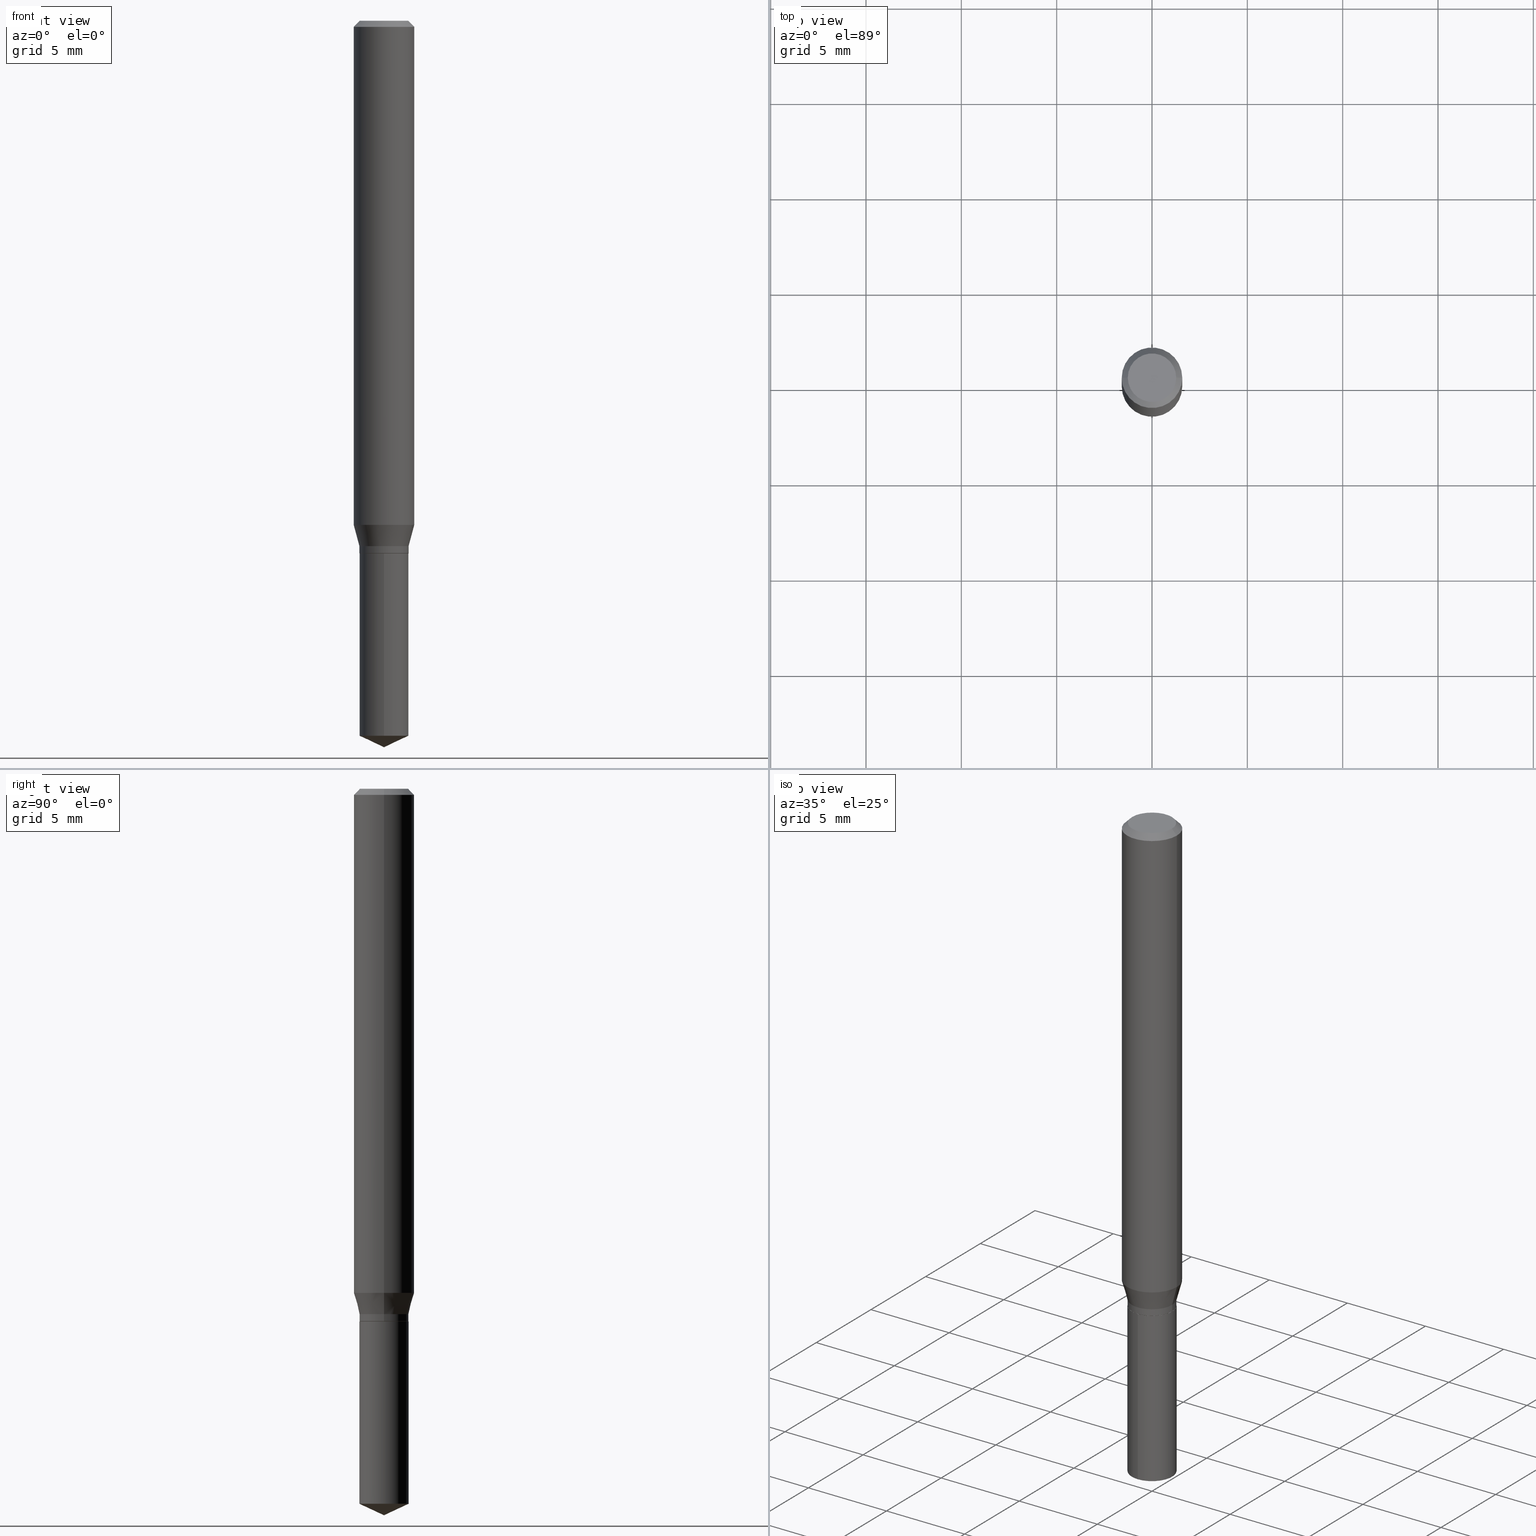
[diagram: canonical four-view strip — front | top / right | iso, engineering-drawing reading convention]
A machine part, canonical four-view strip (front | top / right | iso — engineering-drawing reading convention). The complete STEP part file that produces these views, byte-faithful:
ISO-10303-21;
HEADER;
FILE_DESCRIPTION (( 'STEP AP203' ),
    '1' );
FILE_NAME ('07210.STEP',
    '2024-04-23T20:01:11',
    ( '' ),
    ( '' ),
    'SwSTEP 2.0',
    'SolidWorks 2023',
    '' );
FILE_SCHEMA (( 'CONFIG_CONTROL_DESIGN' ));
ENDSEC;

DATA;
#1 = APPLICATION_PROTOCOL_DEFINITION ( 'international standard', 'config_control_design', 1994, #442 ) ;
#2 = CIRCLE ( 'NONE', #205, 0.06250000000000000000 ) ;
#3 = ADVANCED_FACE ( 'NONE', ( #190 ), #338, .T. ) ;
#4 = APPROVAL ( #49, 'UNSPECIFIED' ) ;
#5 = FACE_OUTER_BOUND ( 'NONE', #183, .T. ) ;
#6 = DIRECTION ( 'NONE',  ( 1.000000000000000000, 0.000000000000000000, 0.000000000000000000 ) ) ;
#7 = CARTESIAN_POINT ( 'NONE',  ( -0.06250000000000006939, 4.440892098500631092E-16, -3.074334431409319267E-30 ) ) ;
#8 = SECURITY_CLASSIFICATION_LEVEL ( 'unclassified' ) ;
#9 = ORIENTED_EDGE ( 'NONE', *, *, #23, .T. ) ;
#10 = DIRECTION ( 'NONE',  ( -2.445468806185136597E-29, 3.491481338843145583E-15, 1.000000000000000000 ) ) ;
#11 = DATE_AND_TIME ( #398, #378 ) ;
#12 = AXIS2_PLACEMENT_3D ( 'NONE', #420, #34, #83 ) ;
#13 = AXIS2_PLACEMENT_3D ( 'NONE', #340, #306, #269 ) ;
#14 = FACE_OUTER_BOUND ( 'NONE', #356, .T. ) ;
#15 = AXIS2_PLACEMENT_3D ( 'NONE', #235, #325, #290 ) ;
#16 = ORIENTED_EDGE ( 'NONE', *, *, #453, .T. ) ;
#17 = CARTESIAN_POINT ( 'NONE',  ( -3.543853558925511729E-16, -0.05075000000000384759, -1.099999999999999867 ) ) ;
#18 = ORIENTED_EDGE ( 'NONE', *, *, #116, .T. ) ;
#19 = DIRECTION ( 'NONE',  ( 1.000000000000000000, -6.982962677686264344E-15, 0.000000000000000000 ) ) ;
#20 = EDGE_CURVE ( 'NONE', #400, #54, #275, .T. ) ;
#21 = DIRECTION ( 'NONE',  ( 1.000000000000000000, -6.982962677686270655E-15, 0.000000000000000000 ) ) ;
#22 = CIRCLE ( 'NONE', #241, 0.05075000000000000344 ) ;
#23 = EDGE_CURVE ( 'NONE', #297, #54, #36, .T. ) ;
#24 = EDGE_LOOP ( 'NONE', ( #255, #157, #199, #407 ) ) ;
#25 = DIRECTION ( 'NONE',  ( -1.000000000000000000, 6.982962677686265922E-15, -4.876176775795935793E-29 ) ) ;
#26 = ORIENTED_EDGE ( 'NONE', *, *, #152, .F. ) ;
#27 = CARTESIAN_POINT ( 'NONE',  ( 3.893286209682126177E-47, -5.558580879666067980E-33, -1.592040838891559689E-18 ) ) ;
#28 = ORIENTED_EDGE ( 'NONE', *, *, #40, .F. ) ;
#29 = CARTESIAN_POINT ( 'NONE',  ( 3.606004383982870085E-16, 0.05074999999999616623, -1.100000000000000089 ) ) ;
#30 = ORIENTED_EDGE ( 'NONE', *, *, #57, .F. ) ;
#31 = AXIS2_PLACEMENT_3D ( 'NONE', #137, #326, #185 ) ;
#32 = DIRECTION ( 'NONE',  ( 0.7071067811865232589, -2.468850131082003836E-15, 0.7071067811865715536 ) ) ;
#33 = VERTEX_POINT ( 'NONE', #375 ) ;
#34 = DIRECTION ( 'NONE',  ( -2.445468806185136597E-29, 3.491481338843145583E-15, 1.000000000000000000 ) ) ;
#35 = AXIS2_PLACEMENT_3D ( 'NONE', #27, #145, #443 ) ;
#36 = LINE ( 'NONE', #486, #51 ) ;
#37 = CARTESIAN_POINT ( 'NONE',  ( 3.056836007731442729E-31, -4.364351673553962300E-17, -0.01250000000000008916 ) ) ;
#38 =( NAMED_UNIT ( * ) PLANE_ANGLE_UNIT ( ) SI_UNIT ( $, .RADIAN. ) );
#39 = ADVANCED_FACE ( 'NONE', ( #345 ), #414, .T. ) ;
#40 = EDGE_CURVE ( 'NONE', #94, #246, #401, .T. ) ;
#41 = CARTESIAN_POINT ( 'NONE',  ( 0.000000000000000000, 0.000000000000000000, 0.000000000000000000 ) ) ;
#42 = AXIS2_PLACEMENT_3D ( 'NONE', #379, #79, #159 ) ;
#43 = CIRCLE ( 'NONE', #341, 0.05075000000000000344 ) ;
#44 = CARTESIAN_POINT ( 'NONE',  ( 3.668099535622682715E-29, -5.237370474839449507E-15, -1.500000000000000222 ) ) ;
#45 = DATE_TIME_ROLE ( 'classification_date' ) ;
#46 = ADVANCED_FACE ( 'NONE', ( #5 ), #180, .T. ) ;
#47 = DIRECTION ( 'NONE',  ( -2.445468806185136597E-29, 3.491481338843145583E-15, 1.000000000000000000 ) ) ;
#48 = DIRECTION ( 'NONE',  ( 6.982962677686265922E-15, 1.000000000000000000, -3.491580316559632610E-15 ) ) ;
#49 = APPROVAL_STATUS ( 'not_yet_approved' ) ;
#50 = ORIENTED_EDGE ( 'NONE', *, *, #57, .T. ) ;
#51 = VECTOR ( 'NONE', #153, 39.37007874015748143 ) ;
#52 = VECTOR ( 'NONE', #253, 39.37007874015748854 ) ;
#53 = DIRECTION ( 'NONE',  ( -2.445399690415121810E-29, 3.491580316559632610E-15, 1.000000000000000000 ) ) ;
#54 = VERTEX_POINT ( 'NONE', #344 ) ;
#55 = FACE_OUTER_BOUND ( 'NONE', #61, .T. ) ;
#56 = ORIENTED_EDGE ( 'NONE', *, *, #373, .F. ) ;
#57 = EDGE_CURVE ( 'NONE', #354, #33, #316, .T. ) ;
#58 = EDGE_CURVE ( 'NONE', #490, #297, #226, .T. ) ;
#59 = DIRECTION ( 'NONE',  ( 2.445468806185136597E-29, -3.491481338843145583E-15, -1.000000000000000000 ) ) ;
#60 = APPLICATION_CONTEXT ( 'configuration controlled 3d designs of mechanical parts and assemblies' ) ;
#61 = EDGE_LOOP ( 'NONE', ( #330, #299, #319, #422 ) ) ;
#62 = AXIS2_PLACEMENT_3D ( 'NONE', #37, #312, #418 ) ;
#63 = CARTESIAN_POINT ( 'NONE',  ( 1.946643104841063088E-47, -2.779290439833033990E-33, -7.960204194457798443E-19 ) ) ;
#64 = VECTOR ( 'NONE', #282, 39.37007874015748854 ) ;
#65 = LINE ( 'NONE', #397, #123 ) ;
#66 = ORIENTED_EDGE ( 'NONE', *, *, #23, .F. ) ;
#67 = DIRECTION ( 'NONE',  ( -2.445468806185136597E-29, 3.491481338843145583E-15, 1.000000000000000000 ) ) ;
#68 = ORIENTED_EDGE ( 'NONE', *, *, #58, .F. ) ;
#69 = DIRECTION ( 'NONE',  ( 1.000000000000000000, -6.982962677686265922E-15, 4.876176775795935793E-29 ) ) ;
#70 = EDGE_LOOP ( 'NONE', ( #244, #472, #483, #56 ) ) ;
#71 = AXIS2_PLACEMENT_3D ( 'NONE', #399, #245, #298 ) ;
#72 = APPROVAL_PERSON_ORGANIZATION ( #458, #4, #104 ) ;
#73 = EDGE_CURVE ( 'NONE', #336, #400, #117, .T. ) ;
#74 = LENGTH_MEASURE_WITH_UNIT ( LENGTH_MEASURE( 0.02539999999999999897 ), #81 );
#75 = DIRECTION ( 'NONE',  ( -0.7071067811865451302, 2.468850131082231817E-15, -0.7071067811865499042 ) ) ;
#76 = DIRECTION ( 'NONE',  ( 1.000000000000000000, -6.982962677686270655E-15, 0.000000000000000000 ) ) ;
#77 = PERSON_AND_ORGANIZATION ( #482, #115 ) ;
#78 = VECTOR ( 'NONE', #348, 39.37007874015748143 ) ;
#79 = DIRECTION ( 'NONE',  ( -2.445468806185136597E-29, 3.491481338843145583E-15, 1.000000000000000000 ) ) ;
#80 = CC_DESIGN_DATE_AND_TIME_ASSIGNMENT ( #11, #45, ( #364 ) ) ;
#81 =( LENGTH_UNIT ( ) NAMED_UNIT ( * ) SI_UNIT ( $, .METRE. ) );
#82 = EDGE_CURVE ( 'NONE', #246, #94, #332, .T. ) ;
#83 = DIRECTION ( 'NONE',  ( 1.000000000000000000, -6.982962677686264344E-15, 0.000000000000000000 ) ) ;
#84 = DIRECTION ( 'NONE',  ( 1.000000000000000000, -6.982962677686270655E-15, 0.000000000000000000 ) ) ;
#85 = CARTESIAN_POINT ( 'NONE',  ( 2.690015686803650369E-29, -3.840629472727460101E-15, -1.100000000000000089 ) ) ;
#86 = APPROVAL_ROLE ( '' ) ;
#87 = VECTOR ( 'NONE', #32, 39.37007874015748854 ) ;
#88 = DIRECTION ( 'NONE',  ( 2.445468806185136597E-29, -3.491481338843145583E-15, -1.000000000000000000 ) ) ;
#89 = COORDINATED_UNIVERSAL_TIME_OFFSET ( 5, 0, .BEHIND. ) ;
#90 = EDGE_LOOP ( 'NONE', ( #175, #211 ) ) ;
#91 = DIRECTION ( 'NONE',  ( -1.000000000000000000, 6.982962677686266711E-15, 0.000000000000000000 ) ) ;
#92 = VERTEX_POINT ( 'NONE', #431 ) ;
#93 = FACE_OUTER_BOUND ( 'NONE', #474, .T. ) ;
#94 = VERTEX_POINT ( 'NONE', #96 ) ;
#95 = CIRCLE ( 'NONE', #484, 0.05075000000000000344 ) ;
#96 = CARTESIAN_POINT ( 'NONE',  ( 3.606004383982870085E-16, 0.05074999999999484784, -1.476334886348634523 ) ) ;
#97 = AXIS2_PLACEMENT_3D ( 'NONE', #126, #265, #304 ) ;
#98 = EDGE_CURVE ( 'NONE', #177, #246, #318, .T. ) ;
#99 = EDGE_CURVE ( 'NONE', #129, #391, #95, .T. ) ;
#100 = CARTESIAN_POINT ( 'NONE',  ( 0.05075000000000000344, -4.193269087950616444E-15, -1.099499999999999922 ) ) ;
#101 = ORIENTED_EDGE ( 'NONE', *, *, #150, .F. ) ;
#102 = APPROVAL_DATE_TIME ( #201, #4 ) ;
#103 = DIRECTION ( 'NONE',  ( -2.445468806185136597E-29, 3.491481338843145583E-15, 1.000000000000000000 ) ) ;
#104 = APPROVAL_ROLE ( '' ) ;
#105 = AXIS2_PLACEMENT_3D ( 'NONE', #456, #451, #125 ) ;
#106 = CARTESIAN_POINT ( 'NONE',  ( 0.05025000000000000300, -4.191523347281194941E-15, -1.100000000000000089 ) ) ;
#107 = AXIS2_PLACEMENT_3D ( 'NONE', #406, #67, #210 ) ;
#108 = VERTEX_POINT ( 'NONE', #313 ) ;
#109 = APPROVAL_PERSON_ORGANIZATION ( #118, #447, #160 ) ;
#110 = DIRECTION ( 'NONE',  ( 1.000000000000000000, -6.982962677686266711E-15, 4.876176775795935793E-29 ) ) ;
#111 = ORIENTED_EDGE ( 'NONE', *, *, #321, .T. ) ;
#112 = CARTESIAN_POINT ( 'NONE',  ( 3.056836007731442729E-31, -4.364351673553962300E-17, -0.01250000000000008916 ) ) ;
#113 = EDGE_LOOP ( 'NONE', ( #328, #179, #9, #476 ) ) ;
#114 = CARTESIAN_POINT ( 'NONE',  ( 2.688792952400557567E-29, -3.838883732058038598E-15, -1.099499999999999922 ) ) ;
#115 = ORGANIZATION ( 'UNSPECIFIED', 'UNSPECIFIED', '' ) ;
#116 = EDGE_CURVE ( 'NONE', #246, #33, #428, .T. ) ;
#117 = LINE ( 'NONE', #262, #390 ) ;
#118 = PERSON_AND_ORGANIZATION ( #482, #115 ) ;
#119 = EDGE_LOOP ( 'NONE', ( #384, #111, #464, #432 ) ) ;
#120 = MANIFOLD_SOLID_BREP ( 'Body-Move/Copy2[1]', #258 ) ;
#121 = CARTESIAN_POINT ( 'NONE',  ( 2.690015686803650369E-29, -3.840629472727460101E-15, -1.100000000000000089 ) ) ;
#122 = DIRECTION ( 'NONE',  ( -2.445468806185136597E-29, 3.491481338843145583E-15, 1.000000000000000000 ) ) ;
#123 = VECTOR ( 'NONE', #434, 39.37007874015748143 ) ;
#124 = CIRCLE ( 'NONE', #15, 0.05075000000000000344 ) ;
#125 = DIRECTION ( 'NONE',  ( -6.982962677686266711E-15, -1.000000000000000000, 2.691475855826860001E-15 ) ) ;
#126 = CARTESIAN_POINT ( 'NONE',  ( -9.260740279983036507E-28, 1.322265303911854087E-13, 37.87007874015748143 ) ) ;
#127 = ADVANCED_FACE ( 'NONE', ( #14 ), #132, .T. ) ;
#128 = DIRECTION ( 'NONE',  ( -2.445399690415121530E-29, 3.491580316559632610E-15, 1.000000000000000000 ) ) ;
#129 = VERTEX_POINT ( 'NONE', #243 ) ;
#130 = AXIS2_PLACEMENT_3D ( 'NONE', #41, #195, #6 ) ;
#131 = DIRECTION ( 'NONE',  ( -2.445468806185136597E-29, 3.491481338843145583E-15, 1.000000000000000000 ) ) ;
#132 = CYLINDRICAL_SURFACE ( 'NONE', #477, 0.05075000000000000344 ) ;
#133 = CARTESIAN_POINT ( 'NONE',  ( -0.05025000000000000300, -3.483581748008009638E-15, -1.100000000000000089 ) ) ;
#134 = EDGE_CURVE ( 'NONE', #54, #400, #2, .T. ) ;
#135 = CLOSED_SHELL ( 'NONE', ( #387, #288, #270, #46, #3, #197, #337, #469, #186, #426, #374, #219 ) ) ;
#136 = AXIS2_PLACEMENT_3D ( 'NONE', #349, #47, #19 ) ;
#137 = CARTESIAN_POINT ( 'NONE',  ( 2.690015686803650369E-29, -3.840629472727460101E-15, -1.100000000000000089 ) ) ;
#138 = EDGE_LOOP ( 'NONE', ( #101, #208, #28 ) ) ;
#139 = ORIENTED_EDGE ( 'NONE', *, *, #408, .T. ) ;
#140 = PERSON_AND_ORGANIZATION_ROLE ( 'classification_officer' ) ;
#141 = FACE_OUTER_BOUND ( 'NONE', #287, .T. ) ;
#142 = COORDINATED_UNIVERSAL_TIME_OFFSET ( 5, 0, .BEHIND. ) ;
#143 = FACE_OUTER_BOUND ( 'NONE', #283, .T. ) ;
#144 = ORIENTED_EDGE ( 'NONE', *, *, #457, .T. ) ;
#145 = DIRECTION ( 'NONE',  ( -2.445468806185136597E-29, 3.491481338843145583E-15, 1.000000000000000000 ) ) ;
#146 = CIRCLE ( 'NONE', #377, 0.05075000000000000344 ) ;
#147 = ORIENTED_EDGE ( 'NONE', *, *, #98, .F. ) ;
#148 = PLANE ( 'NONE',  #154 ) ;
#149 = ORIENTED_EDGE ( 'NONE', *, *, #480, .T. ) ;
#150 = EDGE_CURVE ( 'NONE', #177, #94, #360, .T. ) ;
#151 = VERTEX_POINT ( 'NONE', #380 ) ;
#152 = EDGE_CURVE ( 'NONE', #297, #490, #212, .T. ) ;
#153 = DIRECTION ( 'NONE',  ( -2.445468806185136877E-29, 3.491481338843145188E-15, 1.000000000000000000 ) ) ;
#154 = AXIS2_PLACEMENT_3D ( 'NONE', #445, #296, #69 ) ;
#155 = DIRECTION ( 'NONE',  ( -2.445468806185136597E-29, 3.491481338843145583E-15, 1.000000000000000000 ) ) ;
#156 = ORIENTED_EDGE ( 'NONE', *, *, #99, .T. ) ;
#157 = ORIENTED_EDGE ( 'NONE', *, *, #394, .F. ) ;
#158 = CARTESIAN_POINT ( 'NONE',  ( -0.06250000000000012490, -3.190362713961645999E-15, -1.040948403011065615 ) ) ;
#159 = DIRECTION ( 'NONE',  ( 1.000000000000000000, -6.982962677686266711E-15, 4.876176775795936353E-29 ) ) ;
#160 = APPROVAL_ROLE ( '' ) ;
#161 = CONICAL_SURFACE ( 'NONE', #71, 0.05075000000000000344, 0.2617993877991501850 ) ;
#162 = CARTESIAN_POINT ( 'NONE',  ( 2.652844560949636603E-29, -3.787558956377044815E-15, -1.084800000000000209 ) ) ;
#163 = DIRECTION ( 'NONE',  ( 1.000000000000000000, -6.982962677686266711E-15, 4.876176775795936353E-29 ) ) ;
#164 = PERSON_AND_ORGANIZATION_ROLE ( 'creator' ) ;
#165 = CC_DESIGN_PERSON_AND_ORGANIZATION_ASSIGNMENT ( #424, #247, ( #403 ) ) ;
#166 = LINE ( 'NONE', #466, #182 ) ;
#167 = DATE_AND_TIME ( #438, #381 ) ;
#168 = VECTOR ( 'NONE', #471, 39.37007874015748143 ) ;
#169 = CARTESIAN_POINT ( 'NONE',  ( -3.543853558925419531E-16, -0.05075000000000517292, -1.476334886348633857 ) ) ;
#170 = ORIENTED_EDGE ( 'NONE', *, *, #256, .F. ) ;
#171 = LINE ( 'NONE', #133, #52 ) ;
#172 = DIRECTION ( 'NONE',  ( -6.328713451373378845E-15, -0.9063077870366499367, 0.4226182617406992748 ) ) ;
#173 = CONICAL_SURFACE ( 'NONE', #310, 0.06250000000000000000, 0.7853981633974449483 ) ;
#174 = CARTESIAN_POINT ( 'NONE',  ( 0.06250000000000000000, -4.724246415962603826E-16, -0.01250000000000008916 ) ) ;
#175 = ORIENTED_EDGE ( 'NONE', *, *, #229, .F. ) ;
#176 = LINE ( 'NONE', #174, #168 ) ;
#177 = VERTEX_POINT ( 'NONE', #44 ) ;
#178 = FACE_OUTER_BOUND ( 'NONE', #187, .T. ) ;
#179 = ORIENTED_EDGE ( 'NONE', *, *, #58, .T. ) ;
#180 = CONICAL_SURFACE ( 'NONE', #251, 0.05075000000000000344, 0.2617993877991501850 ) ;
#181 = FACE_OUTER_BOUND ( 'NONE', #90, .T. ) ;
#182 = VECTOR ( 'NONE', #206, 39.37007874015748143 ) ;
#183 = EDGE_LOOP ( 'NONE', ( #156, #238, #26, #440 ) ) ;
#184 = EDGE_CURVE ( 'NONE', #490, #400, #315, .T. ) ;
#185 = DIRECTION ( 'NONE',  ( 1.000000000000000000, -6.982962677686269866E-15, 0.000000000000000000 ) ) ;
#186 = ADVANCED_FACE ( 'NONE', ( #274 ), #347, .T. ) ;
#187 = EDGE_LOOP ( 'NONE', ( #429, #367, #470, #68 ) ) ;
#188 =( NAMED_UNIT ( * ) SI_UNIT ( $, .STERADIAN. ) SOLID_ANGLE_UNIT ( ) );
#189 = AXIS2_PLACEMENT_3D ( 'NONE', #194, #307, #264 ) ;
#190 = FACE_OUTER_BOUND ( 'NONE', #119, .T. ) ;
#191 = APPROVAL_PERSON_ORGANIZATION ( #252, #232, #86 ) ;
#192 = PERSON_AND_ORGANIZATION_ROLE ( 'creator' ) ;
#193 = ADVANCED_BREP_SHAPE_REPRESENTATION ( '07210', ( #120, #284, #130 ), #412 ) ;
#194 = CARTESIAN_POINT ( 'NONE',  ( 3.610304901373009879E-29, -5.154632954337057235E-15, -1.476334886348634079 ) ) ;
#195 = DIRECTION ( 'NONE',  ( 0.000000000000000000, 0.000000000000000000, 1.000000000000000000 ) ) ;
#196 = AXIS2_PLACEMENT_3D ( 'NONE', #465, #88, #91 ) ;
#197 = ADVANCED_FACE ( 'NONE', ( #55 ), #279, .T. ) ;
#198 = CARTESIAN_POINT ( 'NONE',  ( 3.056836007731442729E-31, -4.364351673553962300E-17, -0.01250000000000008916 ) ) ;
#199 = ORIENTED_EDGE ( 'NONE', *, *, #73, .T. ) ;
#200 = CARTESIAN_POINT ( 'NONE',  ( 2.690015686803650369E-29, -3.840629472727460101E-15, -1.100000000000000089 ) ) ;
#201 = DATE_AND_TIME ( #203, #302 ) ;
#202 = DIRECTION ( 'NONE',  ( -2.445399690415121530E-29, 3.491580316559632610E-15, 1.000000000000000000 ) ) ;
#203 = CALENDAR_DATE ( 2024, 23, 4 ) ;
#204 = EDGE_LOOP ( 'NONE', ( #351, #149, #410, #294 ) ) ;
#205 = AXIS2_PLACEMENT_3D ( 'NONE', #198, #131, #233 ) ;
#206 = DIRECTION ( 'NONE',  ( 0.2588190451025214611, 1.565188264969620982E-15, 0.9659258262890679791 ) ) ;
#207 = DIRECTION ( 'NONE',  ( -6.982962677686266711E-15, -1.000000000000000000, 2.691475855826860001E-15 ) ) ;
#208 = ORIENTED_EDGE ( 'NONE', *, *, #98, .T. ) ;
#209 = ORIENTED_EDGE ( 'NONE', *, *, #394, .T. ) ;
#210 = DIRECTION ( 'NONE',  ( 1.000000000000000000, -6.982962677686269866E-15, 0.000000000000000000 ) ) ;
#211 = ORIENTED_EDGE ( 'NONE', *, *, #408, .F. ) ;
#212 = CIRCLE ( 'NONE', #136, 0.06250000000000012490 ) ;
#213 = SHAPE_DEFINITION_REPRESENTATION ( #248, #193 ) ;
#214 = LOCAL_TIME ( 16, 1, 11.00000000000000000, #261 ) ;
#215 = DIRECTION ( 'NONE',  ( 2.438088387897960049E-29, -3.491481338843145188E-15, -1.000000000000000000 ) ) ;
#216 = EDGE_CURVE ( 'NONE', #391, #490, #423, .T. ) ;
#217 = CARTESIAN_POINT ( 'NONE',  ( 2.652844560949636603E-29, -3.787558956377044815E-15, -1.084800000000000209 ) ) ;
#218 = ORIENTED_EDGE ( 'NONE', *, *, #40, .T. ) ;
#219 = ADVANCED_FACE ( 'NONE', ( #93 ), #259, .T. ) ;
#220 = CARTESIAN_POINT ( 'NONE',  ( 0.000000000000000000, 0.000000000000000000, 0.000000000000000000 ) ) ;
#221 = EDGE_CURVE ( 'NONE', #129, #297, #166, .T. ) ;
#222 = CARTESIAN_POINT ( 'NONE',  ( 0.06250000000000012490, -4.070887091167102256E-15, -1.040948403011065615 ) ) ;
#223 = DATE_AND_TIME ( #376, #214 ) ;
#224 = ORIENTED_EDGE ( 'NONE', *, *, #425, .T. ) ;
#225 = PERSON_AND_ORGANIZATION_ROLE ( 'design_owner' ) ;
#226 = CIRCLE ( 'NONE', #12, 0.06250000000000012490 ) ;
#227 = CIRCLE ( 'NONE', #13, 0.04999999999999999584 ) ;
#228 = APPLICATION_PROTOCOL_DEFINITION ( 'international standard', 'config_control_design', 1994, #60 ) ;
#229 = EDGE_CURVE ( 'NONE', #92, #369, #455, .T. ) ;
#230 = DIRECTION ( 'NONE',  ( -6.982962677686266711E-15, -1.000000000000000000, 2.691475855826860001E-15 ) ) ;
#231 = ADVANCED_FACE ( 'NONE', ( #272 ), #239, .F. ) ;
#232 = APPROVAL ( #237, 'UNSPECIFIED' ) ;
#233 = DIRECTION ( 'NONE',  ( 1.000000000000000000, -6.982962677686266711E-15, 0.000000000000000000 ) ) ;
#234 = AXIS2_PLACEMENT_3D ( 'NONE', #439, #293, #257 ) ;
#235 = CARTESIAN_POINT ( 'NONE',  ( 2.690015686803650369E-29, -3.840629472727460101E-15, -1.100000000000000089 ) ) ;
#236 = DIRECTION ( 'NONE',  ( -6.982962677686266711E-15, -1.000000000000000000, 5.382951711653720002E-15 ) ) ;
#237 = APPROVAL_STATUS ( 'not_yet_approved' ) ;
#238 = ORIENTED_EDGE ( 'NONE', *, *, #216, .T. ) ;
#239 = PLANE ( 'NONE',  #277 ) ;
#240 = CARTESIAN_POINT ( 'NONE',  ( 3.668252923656895710E-29, -5.237152723863177100E-15, -1.500000000000000222 ) ) ;
#241 = AXIS2_PLACEMENT_3D ( 'NONE', #217, #103, #335 ) ;
#242 = CONICAL_SURFACE ( 'NONE', #97, 84.42940631927474726, 1.134464013796317783 ) ;
#243 = CARTESIAN_POINT ( 'NONE',  ( 0.05075000000000000344, -4.141944312269623450E-15, -1.084800000000000209 ) ) ;
#244 = ORIENTED_EDGE ( 'NONE', *, *, #229, .T. ) ;
#245 = DIRECTION ( 'NONE',  ( -2.445468806185136597E-29, 3.491481338843145583E-15, 1.000000000000000000 ) ) ;
#246 = VERTEX_POINT ( 'NONE', #169 ) ;
#247 = PERSON_AND_ORGANIZATION_ROLE ( 'design_supplier' ) ;
#248 = PRODUCT_DEFINITION_SHAPE ( 'NONE', 'NONE',  #446 ) ;
#249 = CARTESIAN_POINT ( 'NONE',  ( -0.04999999999999999584, 3.709698922520826725E-16, -1.592040838894077649E-18 ) ) ;
#250 = ORIENTED_EDGE ( 'NONE', *, *, #134, .T. ) ;
#251 = AXIS2_PLACEMENT_3D ( 'NONE', #162, #303, #76 ) ;
#252 = PERSON_AND_ORGANIZATION ( #482, #115 ) ;
#253 = DIRECTION ( 'NONE',  ( -0.7071067811865232589, 7.493145998870265808E-15, 0.7071067811865715536 ) ) ;
#254 = FACE_OUTER_BOUND ( 'NONE', #70, .T. ) ;
#255 = ORIENTED_EDGE ( 'NONE', *, *, #425, .F. ) ;
#256 = EDGE_CURVE ( 'NONE', #369, #108, #171, .T. ) ;
#257 = DIRECTION ( 'NONE',  ( -6.982962677686267499E-15, -1.000000000000000000, 3.520397390770436909E-15 ) ) ;
#258 = CLOSED_SHELL ( 'NONE', ( #39, #308, #489, #127, #231 ) ) ;
#259 = CONICAL_SURFACE ( 'NONE', #468, 0.05025000000000000300, 0.7853981633974141952 ) ;
#260 = CC_DESIGN_APPROVAL ( #4, ( #403 ) ) ;
#261 = COORDINATED_UNIVERSAL_TIME_OFFSET ( 5, 0, .BEHIND. ) ;
#262 = CARTESIAN_POINT ( 'NONE',  ( -0.06250000000000000000, 3.927916506198520587E-16, -0.01250000000000008916 ) ) ;
#263 = APPROVAL_STATUS ( 'not_yet_approved' ) ;
#264 = DIRECTION ( 'NONE',  ( -6.982962677686266711E-15, -1.000000000000000000, 5.382951711653720002E-15 ) ) ;
#265 = DIRECTION ( 'NONE',  ( -2.445399690415121530E-29, 3.491580316559632610E-15, 1.000000000000000000 ) ) ;
#266 = UNCERTAINTY_MEASURE_WITH_UNIT (LENGTH_MEASURE( 1.000000000000000082E-05 ), #421, 'distance_accuracy_value', 'NONE');
#267 = VECTOR ( 'NONE', #53, 39.37007874015748143 ) ;
#268 = FACE_OUTER_BOUND ( 'NONE', #113, .T. ) ;
#269 = DIRECTION ( 'NONE',  ( 1.000000000000000000, -6.982962677686265922E-15, 4.875957971899673662E-29 ) ) ;
#270 = ADVANCED_FACE ( 'NONE', ( #143 ), #329, .T. ) ;
#271 = CC_DESIGN_PERSON_AND_ORGANIZATION_ASSIGNMENT ( #365, #140, ( #364 ) ) ;
#272 = FACE_OUTER_BOUND ( 'NONE', #396, .T. ) ;
#273 = CALENDAR_DATE ( 2024, 23, 4 ) ;
#274 = FACE_OUTER_BOUND ( 'NONE', #24, .T. ) ;
#275 = CIRCLE ( 'NONE', #62, 0.06250000000000000000 ) ;
#276 = ORIENTED_EDGE ( 'NONE', *, *, #373, .T. ) ;
#277 = AXIS2_PLACEMENT_3D ( 'NONE', #385, #358, #48 ) ;
#278 = CC_DESIGN_APPROVAL ( #232, ( #364 ) ) ;
#279 = CYLINDRICAL_SURFACE ( 'NONE', #363, 0.05075000000000000344 ) ;
#280 = ORIENTED_EDGE ( 'NONE', *, *, #152, .T. ) ;
#281 = CARTESIAN_POINT ( 'NONE',  ( 2.652844560949636603E-29, -3.787558956377044815E-15, -1.084800000000000209 ) ) ;
#282 = DIRECTION ( 'NONE',  ( 6.439704144417034297E-15, 0.9063077870366528233, 0.4226182617406930020 ) ) ;
#283 = EDGE_LOOP ( 'NONE', ( #280, #444, #481, #66 ) ) ;
#284 = MANIFOLD_SOLID_BREP ( 'Body-Move/Copy2[2]', #135 ) ;
#285 = AXIS2_PLACEMENT_3D ( 'NONE', #343, #155, #419 ) ;
#286 = CARTESIAN_POINT ( 'NONE',  ( -0.05075000000000000344, -3.452620905819291134E-15, -1.084800000000000209 ) ) ;
#287 = EDGE_LOOP ( 'NONE', ( #209, #16 ) ) ;
#288 = ADVANCED_FACE ( 'NONE', ( #475 ), #173, .T. ) ;
#289 = LINE ( 'NONE', #436, #402 ) ;
#290 = DIRECTION ( 'NONE',  ( -6.982962677686266711E-15, -1.000000000000000000, 2.691475855826860001E-15 ) ) ;
#291 = PERSON_AND_ORGANIZATION ( #482, #115 ) ;
#292 = PRODUCT ( '07210', '07210', '', ( #346 ) ) ;
#293 = DIRECTION ( 'NONE',  ( -2.445399690415121530E-29, 3.491580316559632610E-15, 1.000000000000000000 ) ) ;
#294 = ORIENTED_EDGE ( 'NONE', *, *, #116, .F. ) ;
#295 = VECTOR ( 'NONE', #172, 39.37007874015748854 ) ;
#296 = DIRECTION ( 'NONE',  ( -2.438088387897960049E-29, 3.491481338843145188E-15, 1.000000000000000000 ) ) ;
#297 = VERTEX_POINT ( 'NONE', #222 ) ;
#298 = DIRECTION ( 'NONE',  ( 1.000000000000000000, -6.982962677686270655E-15, 0.000000000000000000 ) ) ;
#299 = ORIENTED_EDGE ( 'NONE', *, *, #478, .T. ) ;
#300 = EDGE_CURVE ( 'NONE', #405, #129, #65, .T. ) ;
#301 = VECTOR ( 'NONE', #395, 39.37007874015748143 ) ;
#302 = LOCAL_TIME ( 16, 1, 11.00000000000000000, #314 ) ;
#303 = DIRECTION ( 'NONE',  ( -2.445468806185136597E-29, 3.491481338843145583E-15, 1.000000000000000000 ) ) ;
#304 = DIRECTION ( 'NONE',  ( -6.982962677686267499E-15, -1.000000000000000000, 3.520397390770436909E-15 ) ) ;
#305 = CC_DESIGN_DATE_AND_TIME_ASSIGNMENT ( #435, #386, ( #446 ) ) ;
#306 = DIRECTION ( 'NONE',  ( -2.445468806185136597E-29, 3.491481338843145583E-15, 1.000000000000000000 ) ) ;
#307 = DIRECTION ( 'NONE',  ( -2.445399690415121530E-29, 3.491580316559632610E-15, 1.000000000000000000 ) ) ;
#308 = ADVANCED_FACE ( 'NONE', ( #404 ), #450, .T. ) ;
#309 = DIRECTION ( 'NONE',  ( -2.445399690415121530E-29, 3.491580316559632610E-15, 1.000000000000000000 ) ) ;
#310 = AXIS2_PLACEMENT_3D ( 'NONE', #112, #59, #473 ) ;
#311 = CYLINDRICAL_SURFACE ( 'NONE', #285, 0.06250000000000006939 ) ;
#312 = DIRECTION ( 'NONE',  ( -2.445468806185136597E-29, 3.491481338843145583E-15, 1.000000000000000000 ) ) ;
#313 = CARTESIAN_POINT ( 'NONE',  ( -0.05075000000000000344, -3.452620905819291134E-15, -1.099499999999999922 ) ) ;
#314 = COORDINATED_UNIVERSAL_TIME_OFFSET ( 5, 0, .BEHIND. ) ;
#315 = LINE ( 'NONE', #7, #301 ) ;
#316 = CIRCLE ( 'NONE', #105, 0.05075000000000000344 ) ;
#317 = CONICAL_SURFACE ( 'NONE', #31, 0.05025000000000000300, 0.7853981633974141952 ) ;
#318 = LINE ( 'NONE', #427, #295 ) ;
#319 = ORIENTED_EDGE ( 'NONE', *, *, #300, .T. ) ;
#320 = CARTESIAN_POINT ( 'NONE',  ( 2.690015686803650369E-29, -3.840629472727460101E-15, -1.100000000000000089 ) ) ;
#321 = EDGE_CURVE ( 'NONE', #108, #391, #289, .T. ) ;
#322 = CARTESIAN_POINT ( 'NONE',  ( 0.000000000000000000, 0.000000000000000000, 0.000000000000000000 ) ) ;
#323 = EDGE_CURVE ( 'NONE', #391, #129, #22, .T. ) ;
#324 = AXIS2_PLACEMENT_3D ( 'NONE', #487, #202, #236 ) ;
#325 = DIRECTION ( 'NONE',  ( -2.445399690415121530E-29, 3.491580316559632610E-15, 1.000000000000000000 ) ) ;
#326 = DIRECTION ( 'NONE',  ( -2.445468806185136597E-29, 3.491481338843145583E-15, 1.000000000000000000 ) ) ;
#327 = DIRECTION ( 'NONE',  ( -2.445468806185136877E-29, 3.491481338843145188E-15, 1.000000000000000000 ) ) ;
#328 = ORIENTED_EDGE ( 'NONE', *, *, #184, .F. ) ;
#329 = CYLINDRICAL_SURFACE ( 'NONE', #392, 0.06250000000000006939 ) ;
#330 = ORIENTED_EDGE ( 'NONE', *, *, #321, .F. ) ;
#331 = AXIS2_PLACEMENT_3D ( 'NONE', #121, #309, #230 ) ;
#332 = CIRCLE ( 'NONE', #324, 0.05075000000000000344 ) ;
#333 = CARTESIAN_POINT ( 'NONE',  ( 2.688792952400557567E-29, -3.838883732058038598E-15, -1.099499999999999922 ) ) ;
#334 = ORIENTED_EDGE ( 'NONE', *, *, #480, .F. ) ;
#335 = DIRECTION ( 'NONE',  ( 1.000000000000000000, -6.982962677686270655E-15, 0.000000000000000000 ) ) ;
#336 = VERTEX_POINT ( 'NONE', #249 ) ;
#337 = ADVANCED_FACE ( 'NONE', ( #178 ), #161, .T. ) ;
#338 = CYLINDRICAL_SURFACE ( 'NONE', #42, 0.05075000000000000344 ) ;
#339 = AXIS2_PLACEMENT_3D ( 'NONE', #200, #462, #352 ) ;
#340 = CARTESIAN_POINT ( 'NONE',  ( 3.893286209682126177E-47, -5.558580879666067980E-33, -1.592040838891559689E-18 ) ) ;
#341 = AXIS2_PLACEMENT_3D ( 'NONE', #114, #122, #84 ) ;
#342 = ORIENTED_EDGE ( 'NONE', *, *, #73, .F. ) ;
#343 = CARTESIAN_POINT ( 'NONE',  ( 0.000000000000000000, 0.000000000000000000, 0.000000000000000000 ) ) ;
#344 = CARTESIAN_POINT ( 'NONE',  ( 0.06250000000000000000, -4.800786840909313294E-16, -0.01250000000000008916 ) ) ;
#345 = FACE_OUTER_BOUND ( 'NONE', #204, .T. ) ;
#346 = MECHANICAL_CONTEXT ( 'NONE', #442, 'mechanical' ) ;
#347 = CONICAL_SURFACE ( 'NONE', #196, 0.06250000000000000000, 0.7853981633974449483 ) ;
#348 = DIRECTION ( 'NONE',  ( -2.445399690415121810E-29, 3.491580316559632610E-15, 1.000000000000000000 ) ) ;
#349 = CARTESIAN_POINT ( 'NONE',  ( 2.545606848411795149E-29, -3.634451923811709009E-15, -1.040948403011065615 ) ) ;
#350 = APPROVAL_DATE_TIME ( #167, #232 ) ;
#351 = ORIENTED_EDGE ( 'NONE', *, *, #82, .T. ) ;
#352 = DIRECTION ( 'NONE',  ( 1.000000000000000000, -6.982962677686269866E-15, 0.000000000000000000 ) ) ;
#353 = COORDINATED_UNIVERSAL_TIME_OFFSET ( 5, 0, .BEHIND. ) ;
#354 = VERTEX_POINT ( 'NONE', #29 ) ;
#355 = DIRECTION ( 'NONE',  ( 1.000000000000000000, -6.982962677686270655E-15, 0.000000000000000000 ) ) ;
#356 = EDGE_LOOP ( 'NONE', ( #334, #218, #18, #30 ) ) ;
#357 = CIRCLE ( 'NONE', #35, 0.04999999999999999584 ) ;
#358 = DIRECTION ( 'NONE',  ( 2.445399690415121250E-29, -3.491580316559632610E-15, -1.000000000000000000 ) ) ;
#359 = CC_DESIGN_PERSON_AND_ORGANIZATION_ASSIGNMENT ( #291, #164, ( #403 ) ) ;
#360 = LINE ( 'NONE', #240, #64 ) ;
#361 = DIRECTION ( 'NONE',  ( -2.445468806185136597E-29, 3.491481338843145583E-15, 1.000000000000000000 ) ) ;
#362 = ORIENTED_EDGE ( 'NONE', *, *, #150, .T. ) ;
#363 = AXIS2_PLACEMENT_3D ( 'NONE', #322, #10, #163 ) ;
#364 = SECURITY_CLASSIFICATION ( '', '', #8 ) ;
#365 = PERSON_AND_ORGANIZATION ( #482, #115 ) ;
#366 = DIRECTION ( 'NONE',  ( -2.445468806185136597E-29, 3.491481338843145583E-15, 1.000000000000000000 ) ) ;
#367 = ORIENTED_EDGE ( 'NONE', *, *, #323, .T. ) ;
#368 = LINE ( 'NONE', #106, #87 ) ;
#369 = VERTEX_POINT ( 'NONE', #409 ) ;
#370 = VECTOR ( 'NONE', #467, 39.37007874015748143 ) ;
#371 = CARTESIAN_POINT ( 'NONE',  ( -0.06250000000000000000, -1.394958510423560486E-15, -0.01250000000000008916 ) ) ;
#372 = ORIENTED_EDGE ( 'NONE', *, *, #453, .F. ) ;
#373 = EDGE_CURVE ( 'NONE', #92, #405, #368, .T. ) ;
#374 = ADVANCED_FACE ( 'NONE', ( #181 ), #148, .F. ) ;
#375 = CARTESIAN_POINT ( 'NONE',  ( -3.543853558925511729E-16, -0.05075000000000384759, -1.099999999999999867 ) ) ;
#376 = CALENDAR_DATE ( 2024, 23, 4 ) ;
#377 = AXIS2_PLACEMENT_3D ( 'NONE', #333, #361, #21 ) ;
#378 = LOCAL_TIME ( 16, 1, 11.00000000000000000, #353 ) ;
#379 = CARTESIAN_POINT ( 'NONE',  ( 0.000000000000000000, 0.000000000000000000, 0.000000000000000000 ) ) ;
#380 = CARTESIAN_POINT ( 'NONE',  ( 0.04999999999999999584, -4.077247707424184705E-16, -1.592040838888913461E-18 ) ) ;
#381 = LOCAL_TIME ( 16, 1, 11.00000000000000000, #142 ) ;
#382 = CC_DESIGN_PERSON_AND_ORGANIZATION_ASSIGNMENT ( #452, #225, ( #292 ) ) ;
#383 = DIRECTION ( 'NONE',  ( 1.000000000000000000, -6.982962677686269866E-15, 0.000000000000000000 ) ) ;
#384 = ORIENTED_EDGE ( 'NONE', *, *, #411, .T. ) ;
#385 = CARTESIAN_POINT ( 'NONE',  ( 2.690015686803650369E-29, -3.840629472727460101E-15, -1.100000000000000089 ) ) ;
#386 = DATE_TIME_ROLE ( 'creation_date' ) ;
#387 = ADVANCED_FACE ( 'NONE', ( #254 ), #317, .T. ) ;
#388 = EDGE_LOOP ( 'NONE', ( #147, #362, #461 ) ) ;
#389 = DIRECTION ( 'NONE',  ( -2.445468806185136597E-29, 3.491481338843145583E-15, 1.000000000000000000 ) ) ;
#390 = VECTOR ( 'NONE', #75, 39.37007874015748143 ) ;
#391 = VERTEX_POINT ( 'NONE', #286 ) ;
#392 = AXIS2_PLACEMENT_3D ( 'NONE', #220, #366, #110 ) ;
#393 = CC_DESIGN_PERSON_AND_ORGANIZATION_ASSIGNMENT ( #77, #192, ( #446 ) ) ;
#394 = EDGE_CURVE ( 'NONE', #336, #151, #357, .T. ) ;
#395 = DIRECTION ( 'NONE',  ( -2.445468806185136877E-29, 3.491481338843145188E-15, 1.000000000000000000 ) ) ;
#396 = EDGE_LOOP ( 'NONE', ( #144, #50 ) ) ;
#397 = CARTESIAN_POINT ( 'NONE',  ( 0.05075000000000000344, -3.543853558925780434E-16, 2.474659713716437751E-30 ) ) ;
#398 = CALENDAR_DATE ( 2024, 23, 4 ) ;
#399 = CARTESIAN_POINT ( 'NONE',  ( 2.652844560949636603E-29, -3.787558956377044815E-15, -1.084800000000000209 ) ) ;
#400 = VERTEX_POINT ( 'NONE', #371 ) ;
#401 = CIRCLE ( 'NONE', #189, 0.05075000000000000344 ) ;
#402 = VECTOR ( 'NONE', #327, 39.37007874015748143 ) ;
#403 = PRODUCT_DEFINITION_FORMATION_WITH_SPECIFIED_SOURCE ( 'ANY', '', #292, .NOT_KNOWN. ) ;
#404 = FACE_OUTER_BOUND ( 'NONE', #388, .T. ) ;
#405 = VERTEX_POINT ( 'NONE', #100 ) ;
#406 = CARTESIAN_POINT ( 'NONE',  ( 2.690015686803650369E-29, -3.840629472727460101E-15, -1.100000000000000089 ) ) ;
#407 = ORIENTED_EDGE ( 'NONE', *, *, #20, .T. ) ;
#408 = EDGE_CURVE ( 'NONE', #369, #92, #433, .T. ) ;
#409 = CARTESIAN_POINT ( 'NONE',  ( -0.05025000000000000300, -3.480932520833898437E-15, -1.100000000000000089 ) ) ;
#410 = ORIENTED_EDGE ( 'NONE', *, *, #457, .F. ) ;
#411 = EDGE_CURVE ( 'NONE', #405, #108, #146, .T. ) ;
#412 =( GEOMETRIC_REPRESENTATION_CONTEXT ( 3 ) GLOBAL_UNCERTAINTY_ASSIGNED_CONTEXT ( ( #266 ) ) GLOBAL_UNIT_ASSIGNED_CONTEXT ( ( #421, #38, #188 ) ) REPRESENTATION_CONTEXT ( 'NONE', 'WORKASPACE' ) );
#413 = DESIGN_CONTEXT ( 'detailed design', #60, 'design' ) ;
#414 = CYLINDRICAL_SURFACE ( 'NONE', #331, 0.05075000000000000344 ) ;
#415 = CARTESIAN_POINT ( 'NONE',  ( 3.606004383982776901E-16, 0.05074999999999616623, -1.100000000000000089 ) ) ;
#416 = FACE_OUTER_BOUND ( 'NONE', #138, .T. ) ;
#417 = LOCAL_TIME ( 16, 1, 11.00000000000000000, #89 ) ;
#418 = DIRECTION ( 'NONE',  ( 1.000000000000000000, -6.982962677686266711E-15, 0.000000000000000000 ) ) ;
#419 = DIRECTION ( 'NONE',  ( 1.000000000000000000, -6.982962677686266711E-15, 4.876176775795935793E-29 ) ) ;
#420 = CARTESIAN_POINT ( 'NONE',  ( 2.545606848411795149E-29, -3.634451923811709009E-15, -1.040948403011065615 ) ) ;
#421 =( CONVERSION_BASED_UNIT ( 'INCH', #74 ) LENGTH_UNIT ( ) NAMED_UNIT ( #449 ) );
#422 = ORIENTED_EDGE ( 'NONE', *, *, #323, .F. ) ;
#423 = LINE ( 'NONE', #460, #370 ) ;
#424 = PERSON_AND_ORGANIZATION ( #482, #115 ) ;
#425 = EDGE_CURVE ( 'NONE', #151, #54, #176, .T. ) ;
#426 = ADVANCED_FACE ( 'NONE', ( #141 ), #479, .F. ) ;
#427 = CARTESIAN_POINT ( 'NONE',  ( 3.668099535622682155E-29, -5.237370474839448718E-15, -1.500000000000000222 ) ) ;
#428 = LINE ( 'NONE', #17, #267 ) ;
#429 = ORIENTED_EDGE ( 'NONE', *, *, #216, .F. ) ;
#430 = DIRECTION ( 'NONE',  ( -2.445468806185136597E-29, 3.491481338843145583E-15, 1.000000000000000000 ) ) ;
#431 = CARTESIAN_POINT ( 'NONE',  ( 0.05025000000000000300, -4.191523347281194941E-15, -1.100000000000000089 ) ) ;
#432 = ORIENTED_EDGE ( 'NONE', *, *, #300, .F. ) ;
#433 = CIRCLE ( 'NONE', #107, 0.05025000000000000300 ) ;
#434 = DIRECTION ( 'NONE',  ( -2.445468806185136877E-29, 3.491481338843145188E-15, 1.000000000000000000 ) ) ;
#435 = DATE_AND_TIME ( #273, #417 ) ;
#436 = CARTESIAN_POINT ( 'NONE',  ( -0.05075000000000000344, 3.606004383982508688E-16, -2.496359558304364946E-30 ) ) ;
#437 = EDGE_LOOP ( 'NONE', ( #372, #224, #250, #342 ) ) ;
#438 = CALENDAR_DATE ( 2024, 23, 4 ) ;
#439 = CARTESIAN_POINT ( 'NONE',  ( -9.260740279983036507E-28, 1.322265303911854087E-13, 37.87007874015748143 ) ) ;
#440 = ORIENTED_EDGE ( 'NONE', *, *, #221, .F. ) ;
#441 = AXIS2_PLACEMENT_3D ( 'NONE', #63, #215, #25 ) ;
#442 = APPLICATION_CONTEXT ( 'configuration controlled 3d designs of mechanical parts and assemblies' ) ;
#443 = DIRECTION ( 'NONE',  ( 1.000000000000000000, -6.982962677686265922E-15, 4.875957971899673662E-29 ) ) ;
#444 = ORIENTED_EDGE ( 'NONE', *, *, #184, .T. ) ;
#445 = CARTESIAN_POINT ( 'NONE',  ( 2.690015686803650369E-29, -3.840629472727460101E-15, -1.100000000000000089 ) ) ;
#446 = PRODUCT_DEFINITION ( 'UNKNOWN', '', #403, #413 ) ;
#447 = APPROVAL ( #263, 'UNSPECIFIED' ) ;
#448 = ORIENTED_EDGE ( 'NONE', *, *, #478, .F. ) ;
#449 = DIMENSIONAL_EXPONENTS ( 1.000000000000000000, 0.000000000000000000, 0.000000000000000000, 0.000000000000000000, 0.000000000000000000, 0.000000000000000000, 0.000000000000000000 ) ;
#450 = CONICAL_SURFACE ( 'NONE', #234, 84.42940631927474726, 1.134464013796317783 ) ;
#451 = DIRECTION ( 'NONE',  ( -2.445399690415121530E-29, 3.491580316559632610E-15, 1.000000000000000000 ) ) ;
#452 = PERSON_AND_ORGANIZATION ( #482, #115 ) ;
#453 = EDGE_CURVE ( 'NONE', #151, #336, #227, .T. ) ;
#454 = APPROVAL_DATE_TIME ( #223, #447 ) ;
#455 = CIRCLE ( 'NONE', #339, 0.05025000000000000300 ) ;
#456 = CARTESIAN_POINT ( 'NONE',  ( 2.690015686803650369E-29, -3.840629472727460101E-15, -1.100000000000000089 ) ) ;
#457 = EDGE_CURVE ( 'NONE', #33, #354, #124, .T. ) ;
#458 = PERSON_AND_ORGANIZATION ( #482, #115 ) ;
#459 = PRODUCT_RELATED_PRODUCT_CATEGORY ( 'detail', '', ( #292 ) ) ;
#460 = CARTESIAN_POINT ( 'NONE',  ( -0.05075000000000000344, -3.426958517978794242E-15, -1.084800000000000209 ) ) ;
#461 = ORIENTED_EDGE ( 'NONE', *, *, #82, .F. ) ;
#462 = DIRECTION ( 'NONE',  ( -2.445468806185136597E-29, 3.491481338843145583E-15, 1.000000000000000000 ) ) ;
#463 = CC_DESIGN_SECURITY_CLASSIFICATION ( #364, ( #403 ) ) ;
#464 = ORIENTED_EDGE ( 'NONE', *, *, #99, .F. ) ;
#465 = CARTESIAN_POINT ( 'NONE',  ( 3.056836007731442729E-31, -4.364351673553962300E-17, -0.01250000000000008916 ) ) ;
#466 = CARTESIAN_POINT ( 'NONE',  ( 0.05075000000000000344, -4.141944312269623450E-15, -1.084800000000000209 ) ) ;
#467 = DIRECTION ( 'NONE',  ( -0.2588190451025214611, 5.211531920934550253E-15, 0.9659258262890679791 ) ) ;
#468 = AXIS2_PLACEMENT_3D ( 'NONE', #320, #430, #383 ) ;
#469 = ADVANCED_FACE ( 'NONE', ( #268 ), #311, .T. ) ;
#470 = ORIENTED_EDGE ( 'NONE', *, *, #221, .T. ) ;
#471 = DIRECTION ( 'NONE',  ( 0.7071067811865451302, -7.319954787623248157E-15, -0.7071067811865499042 ) ) ;
#472 = ORIENTED_EDGE ( 'NONE', *, *, #256, .T. ) ;
#473 = DIRECTION ( 'NONE',  ( -1.000000000000000000, 6.982962677686266711E-15, 0.000000000000000000 ) ) ;
#474 = EDGE_LOOP ( 'NONE', ( #170, #139, #276, #448 ) ) ;
#475 = FACE_OUTER_BOUND ( 'NONE', #437, .T. ) ;
#476 = ORIENTED_EDGE ( 'NONE', *, *, #20, .F. ) ;
#477 = AXIS2_PLACEMENT_3D ( 'NONE', #85, #128, #207 ) ;
#478 = EDGE_CURVE ( 'NONE', #108, #405, #43, .T. ) ;
#479 = PLANE ( 'NONE',  #441 ) ;
#480 = EDGE_CURVE ( 'NONE', #94, #354, #488, .T. ) ;
#481 = ORIENTED_EDGE ( 'NONE', *, *, #134, .F. ) ;
#482 = PERSON ( 'UNSPECIFIED', 'UNSPECIFIED', 'UNSPECIFIED', ('UNSPECIFIED'), ('UNSPECIFIED'), ('UNSPECIFIED') ) ;
#483 = ORIENTED_EDGE ( 'NONE', *, *, #411, .F. ) ;
#484 = AXIS2_PLACEMENT_3D ( 'NONE', #281, #389, #355 ) ;
#485 = CC_DESIGN_APPROVAL ( #447, ( #446 ) ) ;
#486 = CARTESIAN_POINT ( 'NONE',  ( 0.06250000000000006939, -4.364351673553921624E-16, 3.047610484872463374E-30 ) ) ;
#487 = CARTESIAN_POINT ( 'NONE',  ( 3.610304901373009879E-29, -5.154632954337057235E-15, -1.476334886348634079 ) ) ;
#488 = LINE ( 'NONE', #415, #78 ) ;
#489 = ADVANCED_FACE ( 'NONE', ( #416 ), #242, .T. ) ;
#490 = VERTEX_POINT ( 'NONE', #158 ) ;
ENDSEC;
END-ISO-10303-21;
